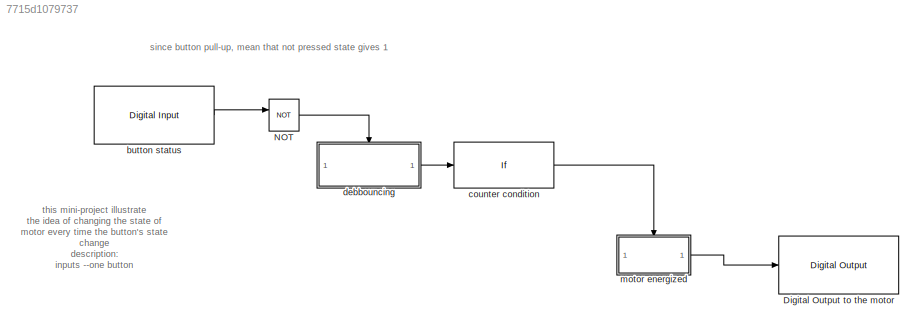
MODEL slx_7715d1079737
KIND model
CONFIG AbsTol = auto
CONFIG EnableMultiTasking = on
CONFIG FixedStep = 1e-3
CONFIG MaxStep = auto
CONFIG MinStep = auto
CONFIG RelTol = 1e-3
CONFIG SampleTimeConstraint = Unconstrained
CONFIG SolverName = FixedStepDiscrete
CONFIG StartTime = 0.0
CONFIG StopTime = inf
BLOCK [Reference] Digital Output to the motor  REF=arduinolib/Digital Output
  SourceBlock = arduinolib/Digital Output
  SourceType = Arduino Digital Output
BLOCK [Logic] NOT
  AllPortsSameDT = off
  IconShape = distinctive
  Operator = NOT
  OutDataTypeStr = boolean
BLOCK [Reference] button status  REF=arduinolib/Digital Input
  SourceBlock = arduinolib/Digital Input
  SourceType = Arduino Digital Input
BLOCK [If] counter condition
  IfExpression = u1 ==10
  ShowElse = off
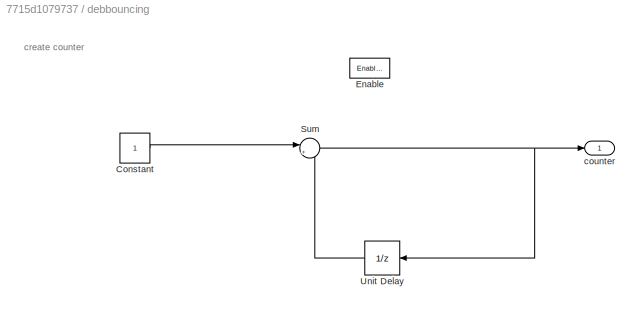
BLOCK [SubSystem] debbouncing
  TreatAsAtomicUnit = on
BLOCK [Constant] debbouncing/Constant
BLOCK [EnablePort] debbouncing/Enable
  StatesWhenEnabling = reset
BLOCK [Sum] debbouncing/Sum
  Inputs = |++
BLOCK [UnitDelay] debbouncing/Unit Delay
  HasFrameUpgradeWarning = on
  NameLocation = top
  SampleTime = -1
BLOCK [Outport] debbouncing/counter 
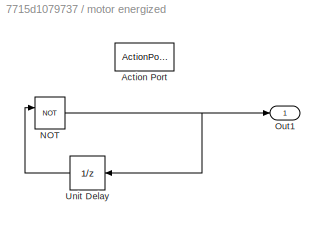
BLOCK [SubSystem] motor energized
  TreatAsAtomicUnit = on
BLOCK [ActionPort] motor energized/Action Port
  ActionPortLabel = if(u1 ==10)
BLOCK [Logic] motor energized/NOT
  AllPortsSameDT = off
  IconShape = distinctive
  Operator = NOT
  OutDataTypeStr = boolean
BLOCK [Outport] motor energized/Out1
BLOCK [UnitDelay] motor energized/Unit Delay
  HasFrameUpgradeWarning = on
  NameLocation = top
  SampleTime = -1
ANNOTATION (root): since button pull-up, mean that not pressed state gives 1
ANNOTATION (root): this mini-project illustrate the idea of changing the state of motor every time the button's state change description: inputs --one button outputs--on motor press button ->motor on press button-> motor off
ANNOTATION debbouncing: create counter
LINE NOT:1 -> debbouncing:enable
LINE button status:1 -> NOT:1
LINE counter condition:1 -> motor energized:ifaction
LINE debbouncing/Constant:1 -> debbouncing/Sum:1
NET debbouncing/Sum:1 -> debbouncing/Unit Delay:1, debbouncing/counter :1
LINE debbouncing/Unit Delay:1 -> debbouncing/Sum:2
LINE debbouncing:1 -> counter condition:1
NET motor energized/NOT:1 -> motor energized/Out1:1, motor energized/Unit Delay:1
LINE motor energized/Unit Delay:1 -> motor energized/NOT:1
LINE motor energized:1 -> Digital Output to the motor:1
note: NET lines group one-source signal fan-out (src -> all destinations, sorted); 1:1 wires keep LINE
